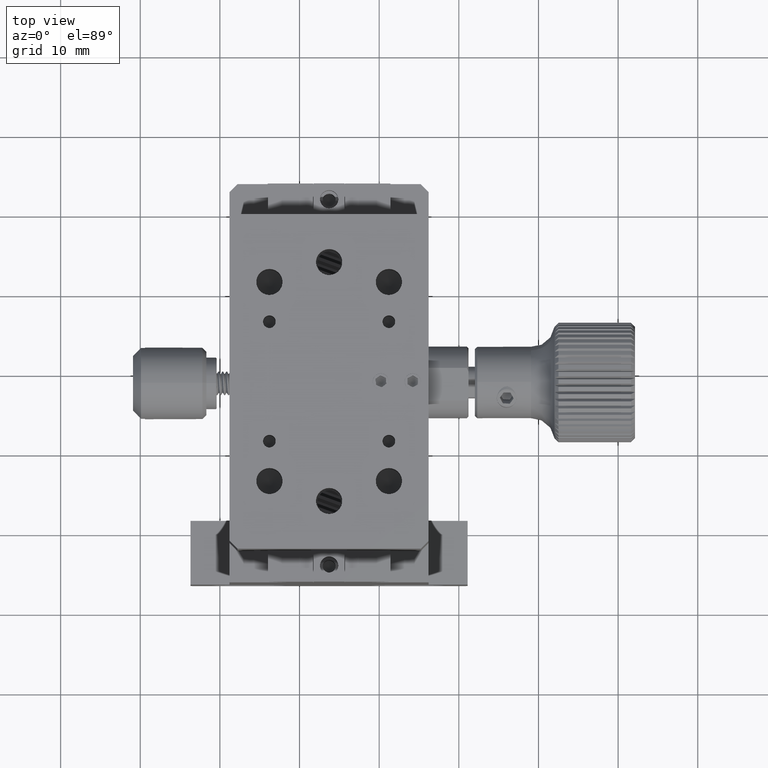
[diagram: clean part render]
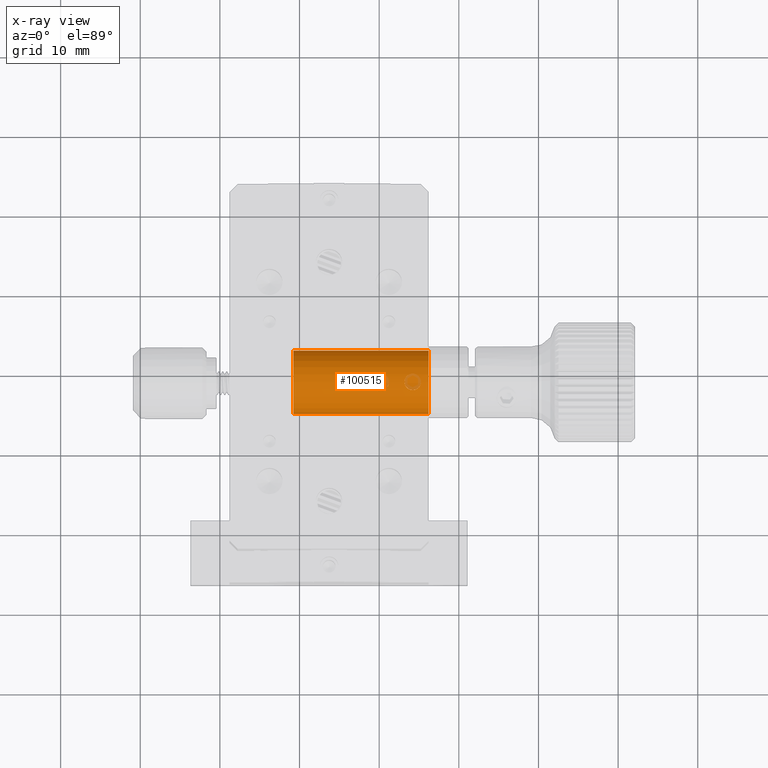
[diagram: x-ray — body ghosted, one internal face saturated and labeled with its STEP entity id]
A machine part, top view, then the same camera in x-ray: the body is ghosted and one INTERNAL B-rep face — a face not visible from any outside direction — is saturated and labeled: STEP entity #100515.
In plain terms, the highlighted cylindrical surface (bore or boss wall) has radius 4 mm, axis along (1, -0, -0).
Its self-contained STEP definition (entity closure, byte-faithful):
#2123 = CARTESIAN_POINT ( 'NONE',  ( 73.18616015887050708, 38.71386910896764988, 86.55689909591752951 ) ) ;
#2470 = ORIENTED_EDGE ( 'NONE', *, *, #86684, .T. ) ;
#4133 = EDGE_LOOP ( 'NONE', ( #7676 ) ) ;
#4289 = CARTESIAN_POINT ( 'NONE',  ( 70.07511167171468003, 39.60296103182204064, 86.42334222273618138 ) ) ;
#4876 = CARTESIAN_POINT ( 'NONE',  ( 71.23616015393560019, 38.71400670580330683, 86.55689467439844975 ) ) ;
#5160 = DIRECTION ( 'NONE',  ( 1.000000000000000000, -1.249000902703282866E-16, -8.112094631762970804E-16 ) ) ;
#7676 = ORIENTED_EDGE ( 'NONE', *, *, #8019, .T. ) ;
#7723 = CARTESIAN_POINT ( 'NONE',  ( 69.69391504449539809, 39.47300402349171122, 86.45583628688589783 ) ) ;
#8019 = EDGE_CURVE ( 'NONE', #100954, #100954, #104583, .T. ) ;
#8315 = CARTESIAN_POINT ( 'NONE',  ( 69.39220473866568284, 37.94740246265097738, 86.50804007933821538 ) ) ;
#8906 = FACE_BOUND ( 'NONE', #73696, .T. ) ;
#11057 = CIRCLE ( 'NONE', #61234, 4.000000000000003553 ) ;
#11779 = CARTESIAN_POINT ( 'NONE',  ( 74.07519224429530880, 37.55297300430051166, 86.42333904881303397 ) ) ;
#12155 = ORIENTED_EDGE ( 'NONE', *, *, #111471, .F. ) ;
#12675 = CARTESIAN_POINT ( 'NONE',  ( 75.23616878375734984, 38.57797300430092236, 86.55689688579025187 ) ) ;
#12970 = CARTESIAN_POINT ( 'NONE',  ( 73.69406397941192211, 37.68298323815581341, 86.45584240535787046 ) ) ;
#13349 = CARTESIAN_POINT ( 'NONE',  ( 71.10614236277434941, 38.06083050506591547, 86.52525581776863817 ) ) ;
#14517 = CARTESIAN_POINT ( 'NONE',  ( 70.34704544421644812, 39.60298496883673636, 86.42333587699535258 ) ) ;
#15014 = LINE ( 'NONE', #42215, #73631 ) ;
#16533 = DIRECTION ( 'NONE',  ( 1.000000000000000000, -1.249000902703282866E-16, -8.112094631762970804E-16 ) ) ;
#16768 = CARTESIAN_POINT ( 'NONE',  ( 71.03011070305578301, 39.20857378203166377, 86.50803528132951215 ) ) ;
#20838 = CARTESIAN_POINT ( 'NONE',  ( 73.21313915091771207, 38.30857456713331999, 86.54975744530760551 ) ) ;
#22034 = CARTESIAN_POINT ( 'NONE',  ( 73.39246656202972474, 39.20888304005789138, 86.50798492656592487 ) ) ;
#22402 = CARTESIAN_POINT ( 'NONE',  ( 69.21313915091771207, 38.30857456713330578, 86.54975744530760551 ) ) ;
#25072 = EDGE_CURVE ( 'NONE', #55022, #55022, #115101, .T. ) ;
#25374 = ORIENTED_EDGE ( 'NONE', *, *, #25072, .T. ) ;
#27214 = CIRCLE ( 'NONE', #94753, 4.000000000000003553 ) ;
#29893 = CARTESIAN_POINT ( 'NONE',  ( 74.34714532321936531, 37.55297300430049745, 86.42333904881297713 ) ) ;
#31109 = CARTESIAN_POINT ( 'NONE',  ( 74.48051694814851942, 37.57993202468220062, 86.43074802705550042 ) ) ;
#32666 = CARTESIAN_POINT ( 'NONE',  ( 69.69406397941190789, 37.68298323815579209, 86.45584240535787046 ) ) ;
#34900 = CARTESIAN_POINT ( 'NONE',  ( 70.48201549572235081, 39.57549400610156454, 86.43087857885912229 ) ) ;
#35117 = CARTESIAN_POINT ( 'NONE',  ( 71.23616878375733563, 38.57797300430092236, 86.55689688579025187 ) ) ;
#35803 = EDGE_LOOP ( 'NONE', ( #109215, #51118, #46998, #105645 ) ) ;
#37063 = AXIS2_PLACEMENT_3D ( 'NONE', #98130, #16533, #117446 ) ;
#38670 = B_SPLINE_CURVE_WITH_KNOTS ( 'NONE', 3,
 ( #41363, #29893, #31109, #67946, #69151, #67348, #104810, #78220, #115066, #66740, #105400, #106004, #76423, #57079, #58283, #96357, #48610, #77638, #93957, #48017, #84878, #22034, #49821, #112658, #2123, #40179, #20838, #103603, #113265, #95756, #12970, #94552, #11779, #39568 ),
 .UNSPECIFIED., .T., .F.,
 ( 4, 2, 2, 2, 2, 2, 2, 2, 2, 2, 2, 2, 2, 2, 2, 2, 4 ),
 ( -0.001607921824408803596, -0.001205925343871026975, -0.0008039288633332503532, -0.0004019323827954737315, 6.409774230289010111E-08, 0.0004020605782800795117, 0.0008040570588178561334, 0.001206053539355632755, 0.001608050019893409377, 0.002010046500431185781, 0.002412042980968962837, 0.002814039461506739892, 0.003216035942044516080, 0.003618032422582292268, 0.004020028903120069323, 0.004422025383657846379, 0.004824021864195622566 ),
 .UNSPECIFIED. ) ;
#39568 = CARTESIAN_POINT ( 'NONE',  ( 74.21116878375732995, 37.55297300430050456, 86.42333904881300555 ) ) ;
#40179 = CARTESIAN_POINT ( 'NONE',  ( 73.18617741277094524, 38.44194682388068429, 86.55689467460547348 ) ) ;
#41139 = CARTESIAN_POINT ( 'NONE',  ( 70.84166042281570697, 37.75894729432432229, 86.47331634084270036 ) ) ;
#41363 = CARTESIAN_POINT ( 'NONE',  ( 74.21116878375732995, 37.55297300430050456, 86.42333904881300555 ) ) ;
#41720 = CARTESIAN_POINT ( 'NONE',  ( 70.34714532321937952, 37.55297300430046903, 86.42333904881297713 ) ) ;
#42215 = CARTESIAN_POINT ( 'NONE',  ( 59.21116878375734416, 42.39372980996831330, 81.35689688579030587 ) ) ;
#44558 = CARTESIAN_POINT ( 'NONE',  ( 69.21365169650884752, 38.84884527340876303, 86.54963226096130313 ) ) ;
#45062 = CARTESIAN_POINT ( 'NONE',  ( 61.46116878375734416, 38.57797300430051024, 82.55689688579026608 ) ) ;
#45150 = CARTESIAN_POINT ( 'NONE',  ( 71.20868282889688317, 38.30708594037460557, 86.54963143445790763 ) ) ;
#46512 = CIRCLE ( 'NONE', #61955, 4.000000000000003553 ) ;
#46998 = ORIENTED_EDGE ( 'NONE', *, *, #74576, .F. ) ;
#48017 = CARTESIAN_POINT ( 'NONE',  ( 73.69391504449538388, 39.47300402349174675, 86.45583628688589783 ) ) ;
#48610 = CARTESIAN_POINT ( 'NONE',  ( 74.34704544421647654, 39.60298496883674346, 86.42333587699535258 ) ) ;
#48664 = DIRECTION ( 'NONE',  ( 0.000000000000000000, 0.000000000000000000, -1.000000000000000000 ) ) ;
#49157 = CARTESIAN_POINT ( 'NONE',  ( 65.96116878375735837, 42.39372980996832041, 81.35689688579032008 ) ) ;
#49821 = CARTESIAN_POINT ( 'NONE',  ( 73.31618123865258951, 39.09508945117867995, 86.52525903442067090 ) ) ;
#50778 = CARTESIAN_POINT ( 'NONE',  ( 69.31618123865260372, 39.09508945117865863, 86.52525903442067090 ) ) ;
#51118 = ORIENTED_EDGE ( 'NONE', *, *, #90219, .T. ) ;
#51366 = CARTESIAN_POINT ( 'NONE',  ( 70.48051694814849100, 37.57993202468217220, 86.43074802705550042 ) ) ;
#51706 = VERTEX_POINT ( 'NONE', #116520 ) ;
#53611 = CARTESIAN_POINT ( 'NONE',  ( 70.21116878375737258, 37.55297300430048324, 86.42333904881300555 ) ) ;
#53635 = EDGE_LOOP ( 'NONE', ( #2470 ) ) ;
#54122 = DIRECTION ( 'NONE',  ( 0.000000000000000000, 0.000000000000000000, -1.000000000000000000 ) ) ;
#54210 = FACE_BOUND ( 'NONE', #53635, .T. ) ;
#55022 = VERTEX_POINT ( 'NONE', #35117 ) ;
#55414 = EDGE_LOOP ( 'NONE', ( #12155 ) ) ;
#57079 = CARTESIAN_POINT ( 'NONE',  ( 74.84199754231181601, 39.39673932349055008, 86.47337153477489835 ) ) ;
#58283 = CARTESIAN_POINT ( 'NONE',  ( 74.72822266797639656, 39.47299332319302323, 86.45583532285701267 ) ) ;
#59251 = CARTESIAN_POINT ( 'NONE',  ( 70.21116878375737258, 37.55297300430048324, 86.42333904881300555 ) ) ;
#59289 = VECTOR ( 'NONE', #70336, 1000.000000000000000 ) ;
#60428 = CARTESIAN_POINT ( 'NONE',  ( 69.94174776628059931, 39.57599318016707457, 86.43075345351370231 ) ) ;
#61234 = AXIS2_PLACEMENT_3D ( 'NONE', #87917, #5160, #48664 ) ;
#61955 = AXIS2_PLACEMENT_3D ( 'NONE', #45062, #93354, #110302 ) ;
#62674 = CARTESIAN_POINT ( 'NONE',  ( 70.72837203221702396, 37.68291153689105499, 86.45582923083526339 ) ) ;
#63275 = CARTESIAN_POINT ( 'NONE',  ( 69.31614761946386238, 38.06069572716483407, 86.52526370152898494 ) ) ;
#66740 = CARTESIAN_POINT ( 'NONE',  ( 75.23616015393558598, 38.71400670580332815, 86.55689467439842133 ) ) ;
#67348 = CARTESIAN_POINT ( 'NONE',  ( 75.02984920694389359, 37.94703308226709737, 86.50798018993594951 ) ) ;
#67946 = CARTESIAN_POINT ( 'NONE',  ( 74.72837203221702396, 37.68291153689106920, 86.45582923083526339 ) ) ;
#69151 = CARTESIAN_POINT ( 'NONE',  ( 74.84166042281569275, 37.75894729432432939, 86.47331634084270036 ) ) ;
#70336 = DIRECTION ( 'NONE',  ( 1.000000000000000000, -1.249000902703282866E-16, -8.112094631762970804E-16 ) ) ;
#71253 = VERTEX_POINT ( 'NONE', #105603 ) ;
#71765 = CARTESIAN_POINT ( 'NONE',  ( 71.02984920694385096, 37.94703308226705474, 86.50798018993594951 ) ) ;
#71770 = FACE_BOUND ( 'NONE', #35803, .T. ) ;
#72355 = CARTESIAN_POINT ( 'NONE',  ( 69.94025045869365442, 37.58047246729532986, 86.43088391787156866 ) ) ;
#72951 = CARTESIAN_POINT ( 'NONE',  ( 69.18616015887049286, 38.71386910896762856, 86.55689909591748687 ) ) ;
#73185 = CARTESIAN_POINT ( 'NONE',  ( 76.21116878375734416, 38.57797300430051024, 78.55689688579025187 ) ) ;
#73631 = VECTOR ( 'NONE', #97194, 1000.000000000000000 ) ;
#73696 = EDGE_LOOP ( 'NONE', ( #25374 ) ) ;
#74576 = EDGE_CURVE ( 'NONE', #51706, #71253, #96943, .T. ) ;
#74626 = DIRECTION ( 'NONE',  ( -1.000000000000000000, 1.249000902703282866E-16, 8.112094631762970804E-16 ) ) ;
#76423 = CARTESIAN_POINT ( 'NONE',  ( 75.03011070305579722, 39.20857378203169930, 86.50803528132948372 ) ) ;
#77638 = CARTESIAN_POINT ( 'NONE',  ( 74.07511167171465161, 39.60296103182205485, 86.42334222273618138 ) ) ;
#78220 = CARTESIAN_POINT ( 'NONE',  ( 75.20868282889691159, 38.30708594037462689, 86.54963143445793605 ) ) ;
#78585 = CARTESIAN_POINT ( 'NONE',  ( 71.20919527690055872, 38.84738659511739911, 86.54975659441726066 ) ) ;
#80339 = VERTEX_POINT ( 'NONE', #49157 ) ;
#80826 = CARTESIAN_POINT ( 'NONE',  ( 70.72822266797641078, 39.47299332319301612, 86.45583532285704109 ) ) ;
#80830 = DIRECTION ( 'NONE',  ( 1.000000000000000000, -1.249000902703282866E-16, -8.112094631762970804E-16 ) ) ;
#84878 = CARTESIAN_POINT ( 'NONE',  ( 73.58063651053807064, 39.39696619933328492, 86.47332310438164882 ) ) ;
#86684 = EDGE_CURVE ( 'NONE', #93664, #93664, #38670, .T. ) ;
#87269 = CARTESIAN_POINT ( 'NONE',  ( 59.21116878375734416, 34.76221619863274270, 81.35689688579022061 ) ) ;
#87635 = CARTESIAN_POINT ( 'NONE',  ( 71.10617599633692976, 39.09527625517287674, 86.52526048837638939 ) ) ;
#87917 = CARTESIAN_POINT ( 'NONE',  ( 59.21116878375734416, 38.57797300430051024, 82.55689688579026608 ) ) ;
#88234 = CARTESIAN_POINT ( 'NONE',  ( 70.84199754231180179, 39.39673932349055008, 86.47337153477489835 ) ) ;
#90062 = EDGE_CURVE ( 'NONE', #51706, #114089, #46512, .T. ) ;
#90219 = EDGE_CURVE ( 'NONE', #80339, #71253, #27214, .T. ) ;
#91076 = CARTESIAN_POINT ( 'NONE',  ( 69.18617741277098787, 38.44194682388066298, 86.55689467460550190 ) ) ;
#91679 = DIRECTION ( 'NONE',  ( 0.000000000000000000, 0.000000000000000000, -1.000000000000000000 ) ) ;
#92250 = CARTESIAN_POINT ( 'NONE',  ( 61.46116878375734416, 42.39372980996831330, 81.35689688579032008 ) ) ;
#92440 = EDGE_CURVE ( 'NONE', #80339, #114089, #15014, .T. ) ;
#93354 = DIRECTION ( 'NONE',  ( 1.000000000000000000, -1.249000902703282866E-16, -8.112094631762970804E-16 ) ) ;
#93664 = VERTEX_POINT ( 'NONE', #12675 ) ;
#93957 = CARTESIAN_POINT ( 'NONE',  ( 73.94174776628059931, 39.57599318016708878, 86.43075345351370231 ) ) ;
#94552 = CARTESIAN_POINT ( 'NONE',  ( 73.94025045869364021, 37.58047246729535829, 86.43088391787156866 ) ) ;
#94753 = AXIS2_PLACEMENT_3D ( 'NONE', #101816, #74626, #54122 ) ;
#95756 = CARTESIAN_POINT ( 'NONE',  ( 73.58029973636979548, 37.75923888372324200, 86.47337823819309222 ) ) ;
#96357 = CARTESIAN_POINT ( 'NONE',  ( 74.48201549572232238, 39.57549400610157875, 86.43087857885909386 ) ) ;
#96648 = CARTESIAN_POINT ( 'NONE',  ( 59.21116878375734416, 38.57797300430051024, 78.55689688579026608 ) ) ;
#96719 = CARTESIAN_POINT ( 'NONE',  ( 69.39246656202972474, 39.20888304005787006, 86.50798492656591065 ) ) ;
#96721 = CARTESIAN_POINT ( 'NONE',  ( 59.21116878375734416, 38.57797300430051024, 82.55689688579026608 ) ) ;
#96943 = LINE ( 'NONE', #87269, #59289 ) ;
#97194 = DIRECTION ( 'NONE',  ( -1.000000000000000000, 1.249000902703282866E-16, 8.112094631762970804E-16 ) ) ;
#98130 = CARTESIAN_POINT ( 'NONE',  ( 76.21116878375734416, 38.57797300430051024, 82.55689688579025187 ) ) ;
#99536 = CARTESIAN_POINT ( 'NONE',  ( 71.23617740945202570, 38.44206938353946867, 86.55689909612451061 ) ) ;
#100144 = FACE_OUTER_BOUND ( 'NONE', #4133, .T. ) ;
#100515 = ADVANCED_FACE ( 'NONE', ( #54210, #100144, #71770, #108594, #8906 ), #110389, .F. ) ;
#100898 = AXIS2_PLACEMENT_3D ( 'NONE', #96721, #80830, #91679 ) ;
#100954 = VERTEX_POINT ( 'NONE', #73185 ) ;
#101816 = CARTESIAN_POINT ( 'NONE',  ( 65.96116878375735837, 38.57797300430051024, 82.55689688579026608 ) ) ;
#103603 = CARTESIAN_POINT ( 'NONE',  ( 73.31614761946384817, 38.06069572716484117, 86.52526370152898494 ) ) ;
#104583 = CIRCLE ( 'NONE', #37063, 4.000000000000003553 ) ;
#104810 = CARTESIAN_POINT ( 'NONE',  ( 75.10614236277434941, 38.06083050506594390, 86.52525581776862396 ) ) ;
#105400 = CARTESIAN_POINT ( 'NONE',  ( 75.20919527690054451, 38.84738659511742043, 86.54975659441721803 ) ) ;
#105603 = CARTESIAN_POINT ( 'NONE',  ( 65.96116878375735837, 34.76221619863274981, 81.35689688579020640 ) ) ;
#105645 = ORIENTED_EDGE ( 'NONE', *, *, #90062, .T. ) ;
#106004 = CARTESIAN_POINT ( 'NONE',  ( 75.10617599633694397, 39.09527625517291227, 86.52526048837638939 ) ) ;
#106368 = CARTESIAN_POINT ( 'NONE',  ( 70.07519224429535143, 37.55297300430049745, 86.42333904881303397 ) ) ;
#108594 = FACE_OUTER_BOUND ( 'NONE', #55414, .T. ) ;
#109215 = ORIENTED_EDGE ( 'NONE', *, *, #92440, .F. ) ;
#110302 = DIRECTION ( 'NONE',  ( 0.000000000000000000, 0.000000000000000000, -1.000000000000000000 ) ) ;
#110389 = CYLINDRICAL_SURFACE ( 'NONE', #100898, 4.000000000000003553 ) ;
#111471 = EDGE_CURVE ( 'NONE', #115964, #115964, #11057, .T. ) ;
#112658 = CARTESIAN_POINT ( 'NONE',  ( 73.21365169650887594, 38.84884527340881277, 86.54963226096130313 ) ) ;
#113265 = CARTESIAN_POINT ( 'NONE',  ( 73.39220473866568284, 37.94740246265098449, 86.50804007933821538 ) ) ;
#114089 = VERTEX_POINT ( 'NONE', #92250 ) ;
#114841 = CARTESIAN_POINT ( 'NONE',  ( 69.58029973636980969, 37.75923888372321358, 86.47337823819309222 ) ) ;
#115066 = CARTESIAN_POINT ( 'NONE',  ( 75.23617740945199728, 38.44206938353951131, 86.55689909612451061 ) ) ;
#115101 = B_SPLINE_CURVE_WITH_KNOTS ( 'NONE', 3,
 ( #53611, #41720, #51366, #62674, #41139, #71765, #13349, #45150, #99536, #4876, #78585, #87635, #16768, #88234, #80826, #34900, #14517, #4289, #60428, #7723, #115443, #96719, #50778, #44558, #72951, #91076, #22402, #63275, #8315, #114841, #32666, #72355, #106368, #59251 ),
 .UNSPECIFIED., .T., .F.,
 ( 4, 2, 2, 2, 2, 2, 2, 2, 2, 2, 2, 2, 2, 2, 2, 2, 4 ),
 ( -0.001607921824408832003, -0.001205925343871054297, -0.0008039288633332764824, -0.0004019323827954986682, 6.409774227903765331E-08, 0.0004020605782800567435, 0.0008040570588178346662, 0.001206053539355612155, 0.001608050019893390078, 0.002010046500431168000, 0.002412042980968945489, 0.002814039461506723412, 0.003216035942044501335, 0.003618032422582279257, 0.004020028903120056313, 0.004422025383657834235, 0.004824021864195612158 ),
 .UNSPECIFIED. ) ;
#115443 = CARTESIAN_POINT ( 'NONE',  ( 69.58063651053804222, 39.39696619933327071, 86.47332310438167724 ) ) ;
#115964 = VERTEX_POINT ( 'NONE', #96648 ) ;
#116520 = CARTESIAN_POINT ( 'NONE',  ( 61.46116878375734416, 34.76221619863274981, 81.35689688579020640 ) ) ;
#117446 = DIRECTION ( 'NONE',  ( 0.000000000000000000, 0.000000000000000000, -1.000000000000000000 ) ) ;